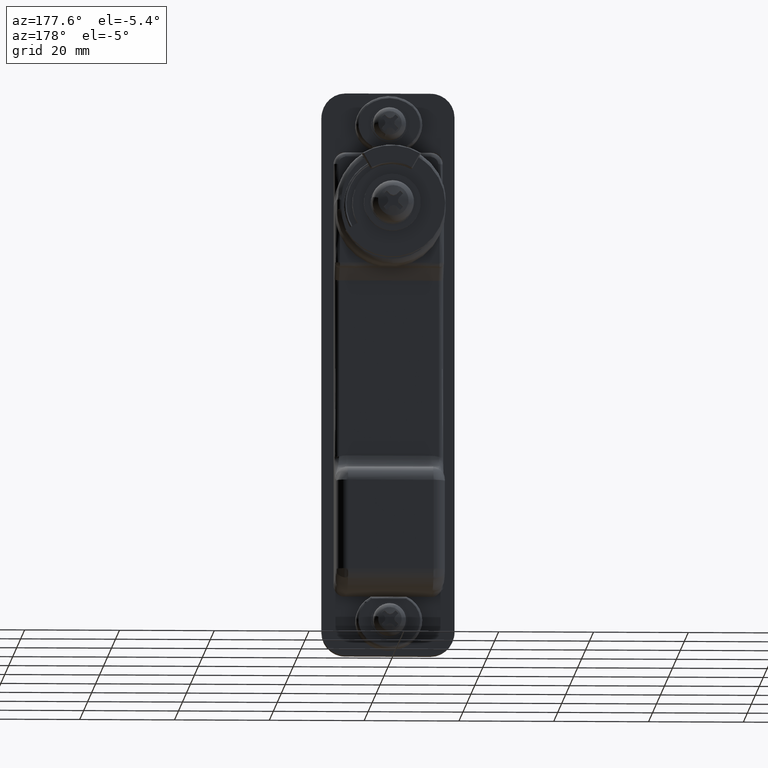
[diagram: clean part render]
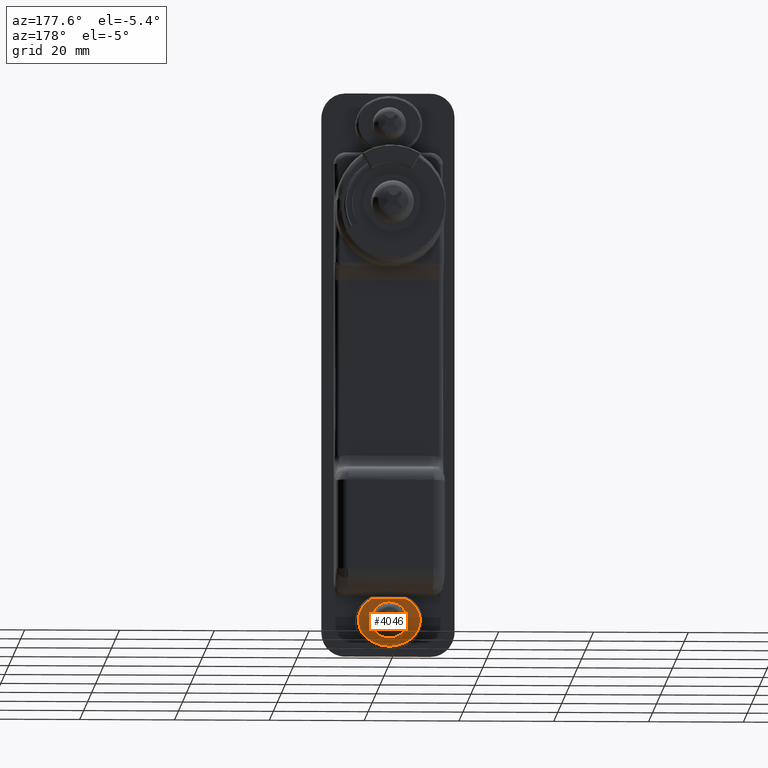
[diagram: same view with one face highlighted and labeled with its STEP entity id]
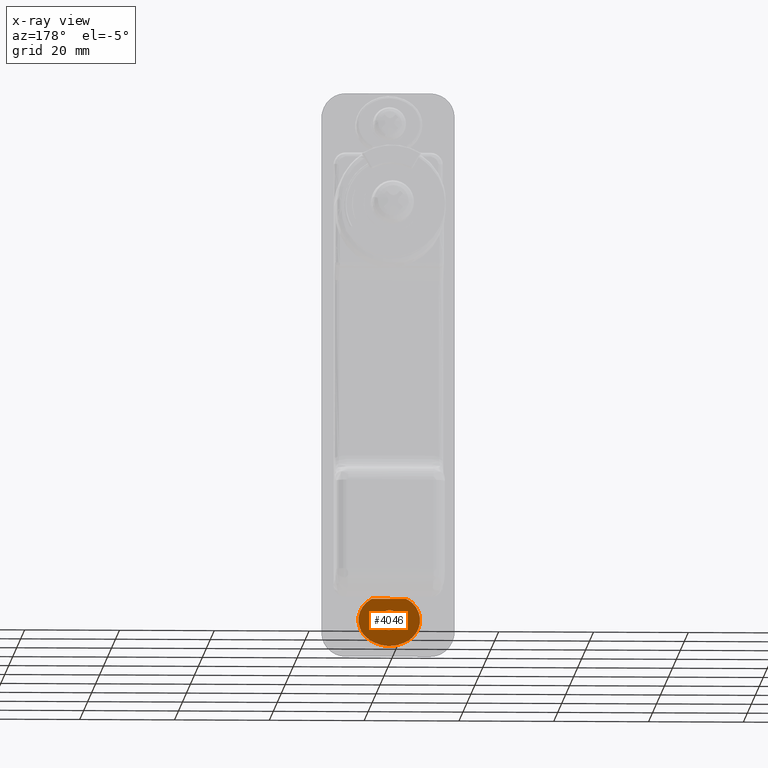
[diagram: x-ray of the same camera — body ghosted, the highlighted face saturated]
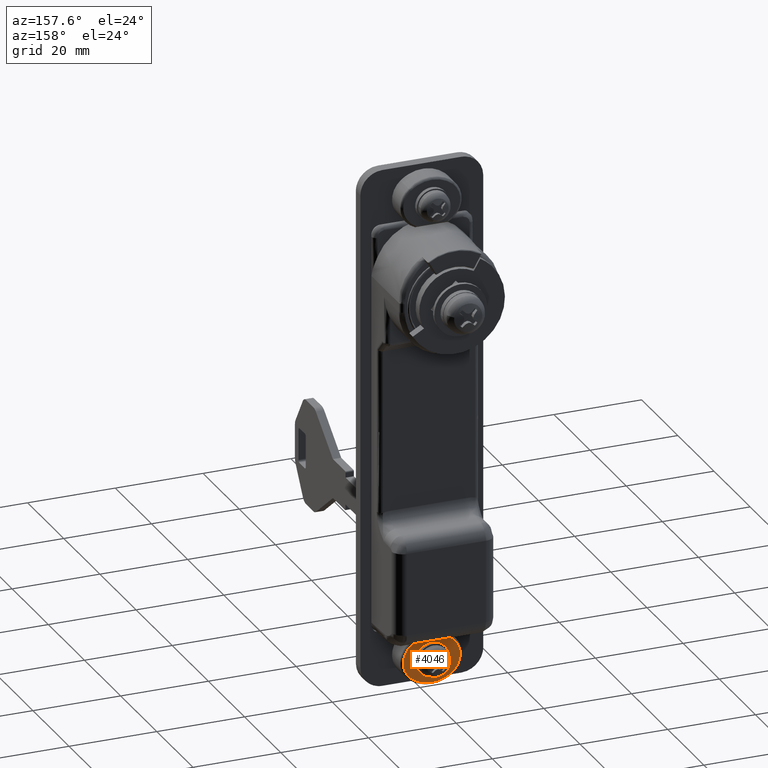
[diagram: same view with one face highlighted and labeled with its STEP entity id]
A machine part, auxiliary view. The second image highlights one B-rep face of the part: STEP entity #4046.
The next image is the same camera in x-ray: the body ghosted, the highlighted face saturated — about 0% of this face is hidden behind the body in this view.
A second angle (auxiliary view) of the same face is appended — the face is thin or edge-on in the first view.
In plain terms, the highlighted face is a freeform B-spline surface patch.
Its self-contained STEP definition (entity closure, byte-faithful):
#3283=CARTESIAN_POINT('',(108.371517000000000,0.0,20.100000000000001));
#3284=VERTEX_POINT('',#3283);
#3285=CARTESIAN_POINT('',(108.371517000000000,-2.093526400730702,18.164764102411759));
#3286=VERTEX_POINT('',#3285);
#3287=CARTESIAN_POINT('',(108.371517000000000,0.0,20.100000000000001));
#3288=CARTESIAN_POINT('',(108.371516999999980,-1.941220029909007,20.100000000000009));
#3289=CARTESIAN_POINT('',(108.371517000000030,-2.093526400730702,18.164764102411763));
#3297=(BOUNDED_CURVE()B_SPLINE_CURVE(2,(#3287,#3288,#3289),.UNSPECIFIED.,.F.,.U.)B_SPLINE_CURVE_WITH_KNOTS((3,3),(0.0,0.236331300406232),.UNSPECIFIED.)CURVE()GEOMETRIC_REPRESENTATION_ITEM()RATIONAL_B_SPLINE_CURVE((1.0,0.723120658870599,0.969723355699054))REPRESENTATION_ITEM(''));
#3298=EDGE_CURVE('',#3284,#3286,#3297,.T.);
#3339=CARTESIAN_POINT('',(108.371517000000000,2.093526400730702,17.835235897588241));
#3340=VERTEX_POINT('',#3339);
#3346=CARTESIAN_POINT('',(108.371517000000010,2.093526400730702,17.835235897588241));
#3347=CARTESIAN_POINT('',(108.371517000000010,2.100000000000001,17.917490773894194));
#3348=CARTESIAN_POINT('',(108.371517000000000,2.100000000000000,18.0));
#3349=CARTESIAN_POINT('',(108.371517000000000,2.100000000000000,20.100000000000005));
#3350=CARTESIAN_POINT('',(108.371517000000000,0.0,20.100000000000001));
#3358=(BOUNDED_CURVE()B_SPLINE_CURVE(2,(#3346,#3347,#3348,#3349,#3350),.UNSPECIFIED.,.F.,.U.)B_SPLINE_CURVE_WITH_KNOTS((3,2,3),(0.736331300406232,0.750000000000000,1.0),.UNSPECIFIED.)CURVE()GEOMETRIC_REPRESENTATION_ITEM()RATIONAL_B_SPLINE_CURVE((0.969723355699054,0.983986122315949,1.0,0.707106781186548,1.0))REPRESENTATION_ITEM(''));
#3359=EDGE_CURVE('',#3340,#3284,#3358,.T.);
#3382=CARTESIAN_POINT('',(108.371517000000000,0.0,15.900000000000000));
#3383=VERTEX_POINT('',#3382);
#3384=CARTESIAN_POINT('',(108.371517000000010,-2.093526400730702,18.164764102411759));
#3385=CARTESIAN_POINT('',(108.371517000000030,-2.100000000000001,18.082509226105813));
#3386=CARTESIAN_POINT('',(108.371517000000000,-2.100000000000000,18.0));
#3387=CARTESIAN_POINT('',(108.371517000000000,-2.100000000000000,15.900000000000006));
#3388=CARTESIAN_POINT('',(108.371517000000000,0.0,15.900000000000000));
#3396=(BOUNDED_CURVE()B_SPLINE_CURVE(2,(#3384,#3385,#3386,#3387,#3388),.UNSPECIFIED.,.F.,.U.)B_SPLINE_CURVE_WITH_KNOTS((3,2,3),(0.236331300406232,0.250000000000000,0.500000000000000),.UNSPECIFIED.)CURVE()GEOMETRIC_REPRESENTATION_ITEM()RATIONAL_B_SPLINE_CURVE((0.969723355699054,0.983986122315948,1.0,0.707106781186548,1.0))REPRESENTATION_ITEM(''));
#3397=EDGE_CURVE('',#3286,#3383,#3396,.T.);
#3399=CARTESIAN_POINT('',(108.371517000000000,0.0,15.900000000000000));
#3400=CARTESIAN_POINT('',(108.371516999999980,1.941220029909006,15.900000000000004));
#3401=CARTESIAN_POINT('',(108.371517000000040,2.093526400730701,17.835235897588245));
#3409=(BOUNDED_CURVE()B_SPLINE_CURVE(2,(#3399,#3400,#3401),.UNSPECIFIED.,.F.,.U.)B_SPLINE_CURVE_WITH_KNOTS((3,3),(0.500000000000000,0.736331300406232),.UNSPECIFIED.)CURVE()GEOMETRIC_REPRESENTATION_ITEM()RATIONAL_B_SPLINE_CURVE((1.0,0.723120658870599,0.969723355699054))REPRESENTATION_ITEM(''));
#3410=EDGE_CURVE('',#3383,#3340,#3409,.T.);
#3470=CARTESIAN_POINT('',(108.371517000000000,-4.784376737144320,21.730143853736799));
#3471=VERTEX_POINT('',#3470);
#3504=CARTESIAN_POINT('',(108.371517000000000,-3.558527802521890,13.500000000000000));
#3505=VERTEX_POINT('',#3504);
#3529=CARTESIAN_POINT('',(108.371517000000000,-4.784376737144320,21.730143853736799));
#3530=CARTESIAN_POINT('',(108.371517000000000,-6.846518200020559,19.962593762365575));
#3531=CARTESIAN_POINT('',(108.371517000000000,-6.446394116380724,17.276227916820499));
#3532=CARTESIAN_POINT('',(108.371517000000000,-6.046270032740892,14.589862071275409));
#3533=CARTESIAN_POINT('',(108.371517000000000,-3.558527802521879,13.500000000000020));
#3541=(BOUNDED_CURVE()B_SPLINE_CURVE(2,(#3529,#3530,#3531,#3532,#3533),.UNSPECIFIED.,.F.,.U.)B_SPLINE_CURVE_WITH_KNOTS((3,2,3),(0.0,0.500000000000000,1.0),.UNSPECIFIED.)CURVE()GEOMETRIC_REPRESENTATION_ITEM()RATIONAL_B_SPLINE_CURVE((1.0,0.875167415822438,1.0,0.875167415822438,1.0))REPRESENTATION_ITEM(''));
#3542=EDGE_CURVE('',#3471,#3505,#3541,.T.);
#3563=CARTESIAN_POINT('',(108.371517000000000,3.701791188060000,13.500000000000000));
#3564=VERTEX_POINT('',#3563);
#3590=CARTESIAN_POINT('',(108.371517000000000,-3.558527802521890,13.500000000000000));
#3591=CARTESIAN_POINT('',(108.371517000000000,3.701791188060000,13.500000000000000));
#3592=QUASI_UNIFORM_CURVE('',1,(#3590,#3591),.UNSPECIFIED.,.F.,.U.);
#3593=EDGE_CURVE('',#3505,#3564,#3592,.T.);
#3621=CARTESIAN_POINT('',(108.371517000000000,4.784377928443000,21.730143742590201));
#3622=VERTEX_POINT('',#3621);
#3652=CARTESIAN_POINT('',(108.371517000000000,4.784377928443000,21.730143742590201));
#3653=CARTESIAN_POINT('',(108.371517000000000,0.000000643283576,25.831038755849235));
#3654=CARTESIAN_POINT('',(108.371517000000000,-4.784376737144329,21.730143853736809));
#3662=(BOUNDED_CURVE()B_SPLINE_CURVE(2,(#3652,#3653,#3654),.UNSPECIFIED.,.F.,.U.)CURVE()GEOMETRIC_REPRESENTATION_ITEM()QUASI_UNIFORM_CURVE()RATIONAL_B_SPLINE_CURVE((1.0,0.759256558768002,1.0))REPRESENTATION_ITEM(''));
#3663=EDGE_CURVE('',#3622,#3471,#3662,.T.);
#3687=CARTESIAN_POINT('',(108.371517000000000,4.784377478812370,14.269856781978740));
#3688=VERTEX_POINT('',#3687);
#3704=CARTESIAN_POINT('',(108.371517000000000,3.701791188060045,13.499999999999920));
#3705=CARTESIAN_POINT('',(108.371516999999950,4.278004654256154,13.835822815155881));
#3706=CARTESIAN_POINT('',(108.371517000000000,4.784377478812370,14.269856781978740));
#3714=(BOUNDED_CURVE()B_SPLINE_CURVE(2,(#3704,#3705,#3706),.UNSPECIFIED.,.F.,.U.)CURVE()GEOMETRIC_REPRESENTATION_ITEM()QUASI_UNIFORM_CURVE()RATIONAL_B_SPLINE_CURVE((1.0,0.995910257523530,1.0))REPRESENTATION_ITEM(''));
#3715=EDGE_CURVE('',#3564,#3688,#3714,.T.);
#3752=CARTESIAN_POINT('',(108.371517000000000,4.784377478812370,14.269856781978740));
#3753=CARTESIAN_POINT('',(108.371517000000000,6.500001000000001,15.740390715836357));
#3754=CARTESIAN_POINT('',(108.371517000000000,6.500001000000000,18.0));
#3755=CARTESIAN_POINT('',(108.371517000000000,6.500001000000001,20.259609284163648));
#3756=CARTESIAN_POINT('',(108.371517000000000,4.784377928442990,21.730143742590180));
#3764=(BOUNDED_CURVE()B_SPLINE_CURVE(2,(#3752,#3753,#3754,#3755,#3756),.UNSPECIFIED.,.F.,.U.)B_SPLINE_CURVE_WITH_KNOTS((3,2,3),(0.0,0.500000000000000,1.0),.UNSPECIFIED.)CURVE()GEOMETRIC_REPRESENTATION_ITEM()RATIONAL_B_SPLINE_CURVE((1.0,0.908512926369763,1.0,0.908512926369763,1.0))REPRESENTATION_ITEM(''));
#3765=EDGE_CURVE('',#3688,#3622,#3764,.T.);
#4028=CARTESIAN_POINT('',(108.371517000000000,-7.148900464504800,23.999500043279880));
#4029=CARTESIAN_POINT('',(108.371517000000000,7.149329986064219,23.999500043279880));
#4030=CARTESIAN_POINT('',(108.371517000000000,-7.148900464504800,13.000499748179990));
#4031=CARTESIAN_POINT('',(108.371517000000000,7.149329986064219,13.000499748179990));
#4032=B_SPLINE_SURFACE_WITH_KNOTS('',1,1,((#4028,#4030),(#4029,#4031)),.UNSPECIFIED.,.F.,.F.,.U.,(2,2),(2,2),(0.0,14.298230450569021),(0.0,10.999000295099901),.UNSPECIFIED.);
#4033=ORIENTED_EDGE('',*,*,#3663,.T.);
#4034=ORIENTED_EDGE('',*,*,#3542,.T.);
#4035=ORIENTED_EDGE('',*,*,#3593,.T.);
#4036=ORIENTED_EDGE('',*,*,#3715,.T.);
#4037=ORIENTED_EDGE('',*,*,#3765,.T.);
#4038=EDGE_LOOP('',(#4033,#4034,#4035,#4036,#4037));
#4039=FACE_OUTER_BOUND('',#4038,.T.);
#4040=ORIENTED_EDGE('',*,*,#3410,.F.);
#4041=ORIENTED_EDGE('',*,*,#3397,.F.);
#4042=ORIENTED_EDGE('',*,*,#3298,.F.);
#4043=ORIENTED_EDGE('',*,*,#3359,.F.);
#4044=EDGE_LOOP('',(#4040,#4041,#4042,#4043));
#4045=FACE_BOUND('',#4044,.T.);
#4046=ADVANCED_FACE('',(#4039,#4045),#4032,.F.);